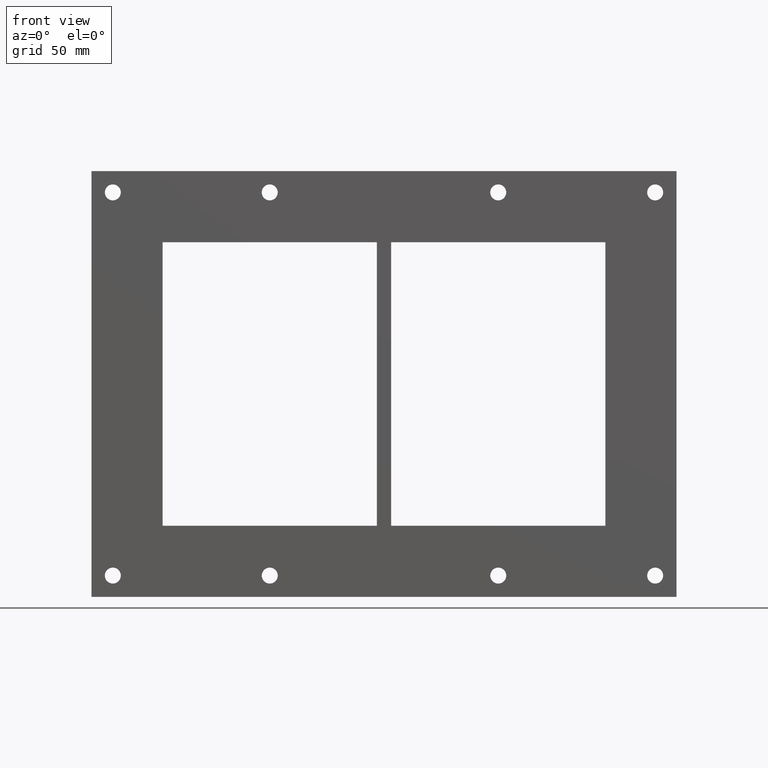
[diagram: clean part render]
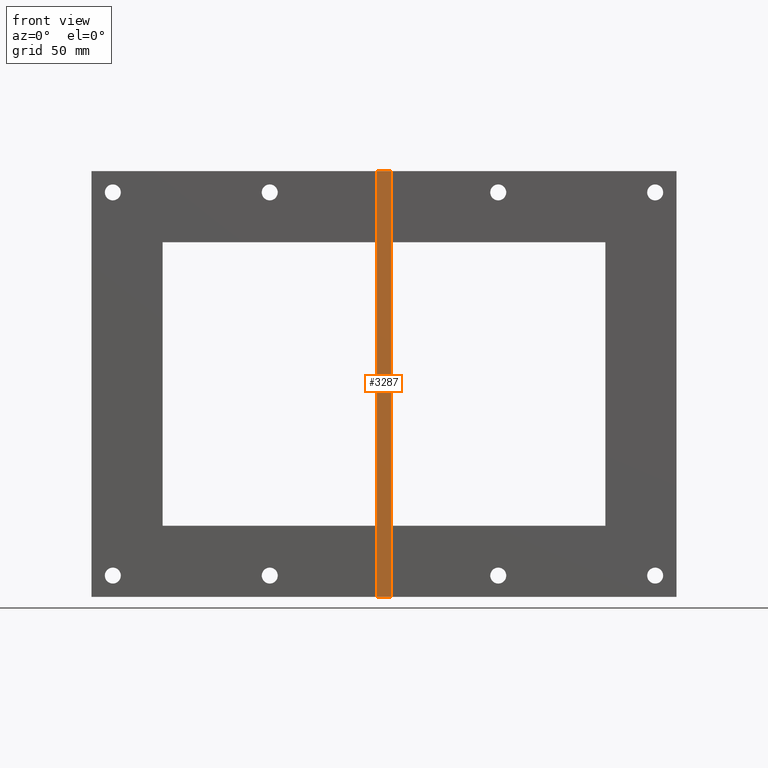
[diagram: same view with one face highlighted and labeled with its STEP entity id]
A machine part, front view. The second image highlights one B-rep face of the part: STEP entity #3287.
In plain terms, the highlighted planar face has unit normal (0, -1, -0).
Its self-contained STEP definition (entity closure, byte-faithful):
#3145=CARTESIAN_POINT('',(0.0,0.0,239.50000000000003));
#3146=VERTEX_POINT('',#3145);
#3163=CARTESIAN_POINT('',(0.0,0.0,0.0));
#3164=VERTEX_POINT('',#3163);
#3171=CARTESIAN_POINT('',(0.0,0.0,0.0));
#3172=DIRECTION('',(0.0,0.0,1.0));
#3173=VECTOR('',#3172,239.50000000000003);
#3174=LINE('',#3171,#3173);
#3175=EDGE_CURVE('',#3164,#3146,#3174,.T.);
#3228=CARTESIAN_POINT('',(7.999999999999994,0.0,239.50000000000003));
#3229=VERTEX_POINT('',#3228);
#3236=CARTESIAN_POINT('',(7.999999999999994,0.0,0.0));
#3237=VERTEX_POINT('',#3236);
#3238=CARTESIAN_POINT('',(7.999999999999994,0.0,0.0));
#3239=DIRECTION('',(0.0,0.0,1.0));
#3240=VECTOR('',#3239,239.50000000000003);
#3241=LINE('',#3238,#3240);
#3242=EDGE_CURVE('',#3237,#3229,#3241,.T.);
#3266=CARTESIAN_POINT('',(7.999999999999994,0.0,0.0));
#3267=DIRECTION('',(0.0,-1.0,0.0));
#3268=DIRECTION('',(0.0,0.0,-1.0));
#3269=AXIS2_PLACEMENT_3D('',#3266,#3267,#3268);
#3270=PLANE('',#3269);
#3271=CARTESIAN_POINT('',(7.999999999999994,0.0,239.50000000000003));
#3272=DIRECTION('',(-1.0,0.0,0.0));
#3273=VECTOR('',#3272,7.999999999999994);
#3274=LINE('',#3271,#3273);
#3275=EDGE_CURVE('',#3229,#3146,#3274,.T.);
#3276=ORIENTED_EDGE('',*,*,#3275,.T.);
#3277=ORIENTED_EDGE('',*,*,#3175,.F.);
#3278=CARTESIAN_POINT('',(0.0,0.0,0.0));
#3279=DIRECTION('',(1.0,0.0,0.0));
#3280=VECTOR('',#3279,7.999999999999994);
#3281=LINE('',#3278,#3280);
#3282=EDGE_CURVE('',#3164,#3237,#3281,.T.);
#3283=ORIENTED_EDGE('',*,*,#3282,.T.);
#3284=ORIENTED_EDGE('',*,*,#3242,.T.);
#3285=EDGE_LOOP('',(#3276,#3277,#3283,#3284));
#3286=FACE_OUTER_BOUND('',#3285,.T.);
#3287=ADVANCED_FACE('',(#3286),#3270,.T.);